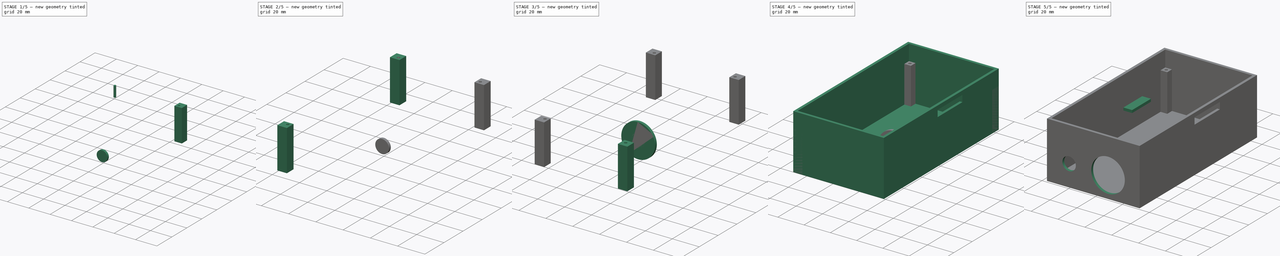
[diagram: build sequence overview — one tinted view per stage of 5, left to right]
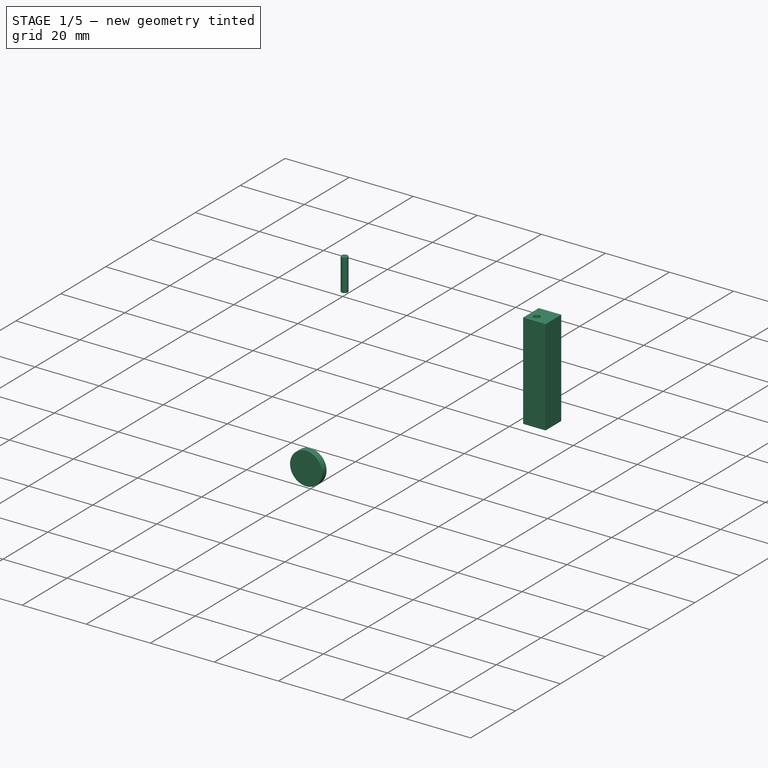
[diagram: stage 1 of 5 — iso view after this stage's code; geometry added in this stage tinted green]
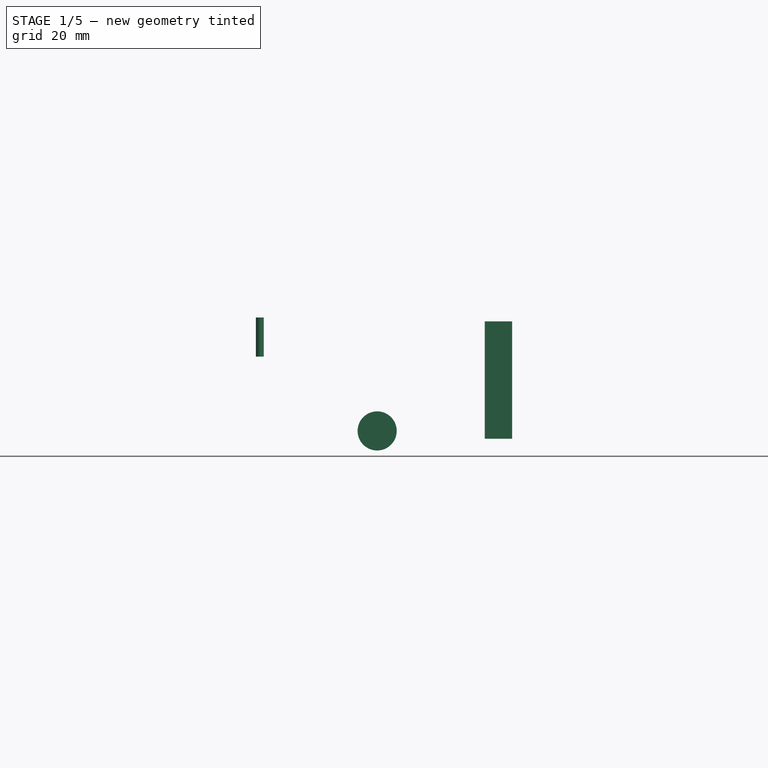
[diagram: stage 1 of 5 — front view after this stage's code; geometry added in this stage tinted green]
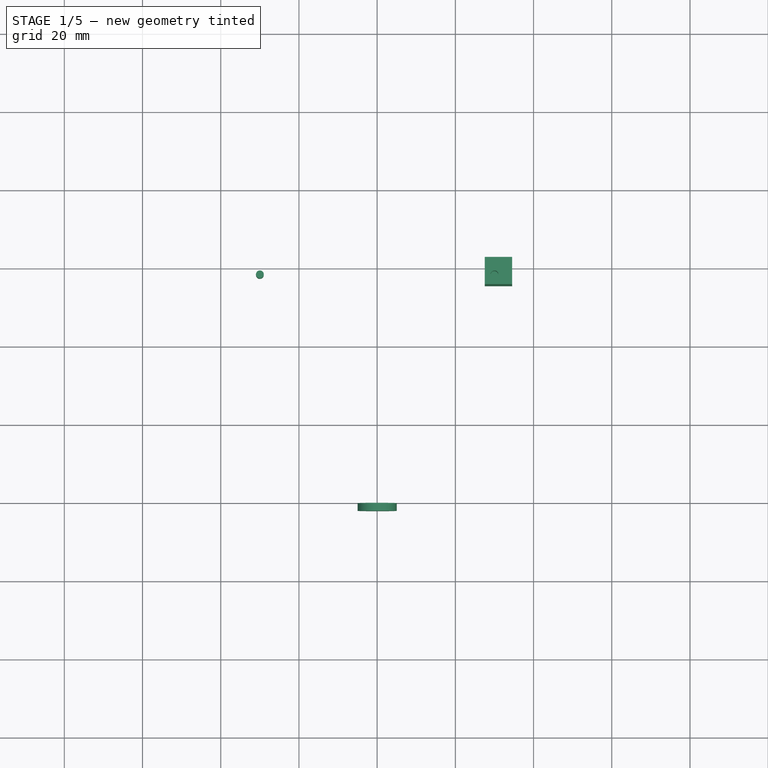
[diagram: stage 1 of 5 — top view after this stage's code; geometry added in this stage tinted green]
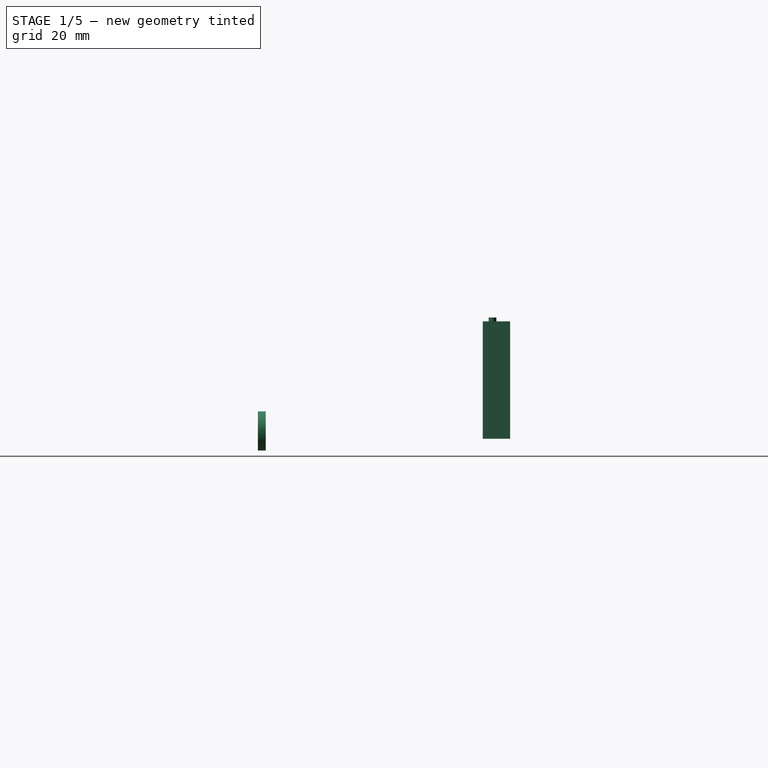
[diagram: stage 1 of 5 — right view after this stage's code; geometry added in this stage tinted green]
FCSTD DOCUMENT  (FreeCAD 0.17R13541 (Git))
Label: ir camera design
License: All rights reserved
LicenseURL: http://en.wikipedia.org/wiki/All_rights_reserved
objects: Sketcher::SketchObject×7, Part::Cut×7, PartDesign::Pad×6, PartDesign::Body×5, Part::Box×4, Part::Cylinder×4, Part::MultiFuse×2, Part::Extrusion×1
note: 42 computed .brp shape members not serialized (recipe doc carries the construction recipe); baked Part::Feature solids carry a one-line shape summary decoded from their .brp

FEATURE [Part::Cylinder] Cylinder002
  Angle = 360
  AttacherType = Attacher::AttachEngine3D
  Height = 10
  Placement = pos=(-30,58,19) rot=(0,0,1;0rad)
  Radius = 1
FEATURE [Part::Box] Box003  label="Cube003"
  AttacherType = Attacher::AttachEngine3D
  Height = 30
  Length = 7
  Placement = pos=(27.5,55.5,-2) rot=(0,0,1;0rad)
  Width = 7
FEATURE [Part::Cylinder] Cylinder003
  Angle = 360
  AttacherType = Attacher::AttachEngine3D
  Height = 10
  Placement = pos=(30,58,18) rot=(0,0,1;0rad)
  Radius = 1
FEATURE [Part::Cut] Cut005  label="screwport 3 "
  Base = -> Box003
  Refine = true
  Tool = -> Cylinder003
FEATURE [Sketcher::SketchObject] Sketch008
  MapMode = 5
  Placement = pos=(0,0,0) rot=(1,0,0;1.5708rad)
  Support = -> [XZ_Plane005]
  sketch-geometry (1):
    g0: Circle CenterX=0 CenterY=0 CenterZ=0 NormalX=0 NormalY=0 NormalZ=1 AngleXU=0 Radius=5
  constraints (2):
    c: Coincident(g0,g-1)
    c: Radius(g0) = 5
FEATURE [PartDesign::Pad] Pad006
  Length = 2
  Length2 = 100
  Placement = pos=(0,0,0) rot=(1,0,0;1.5708rad)
  Profile = -> Sketch008
  Refine = true
  Type = 0
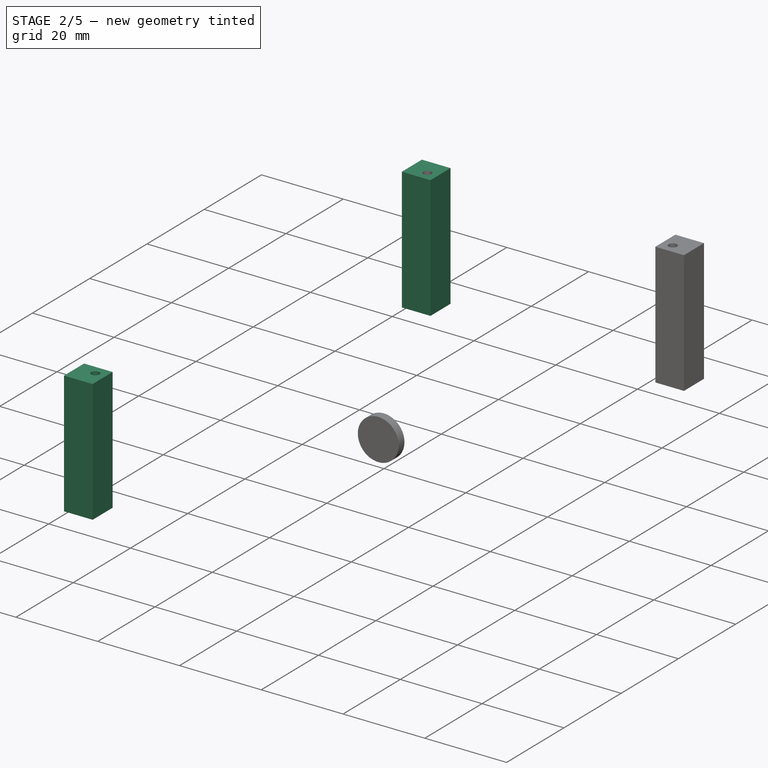
[diagram: stage 2 of 5 — iso view after this stage's code; geometry added in this stage tinted green]
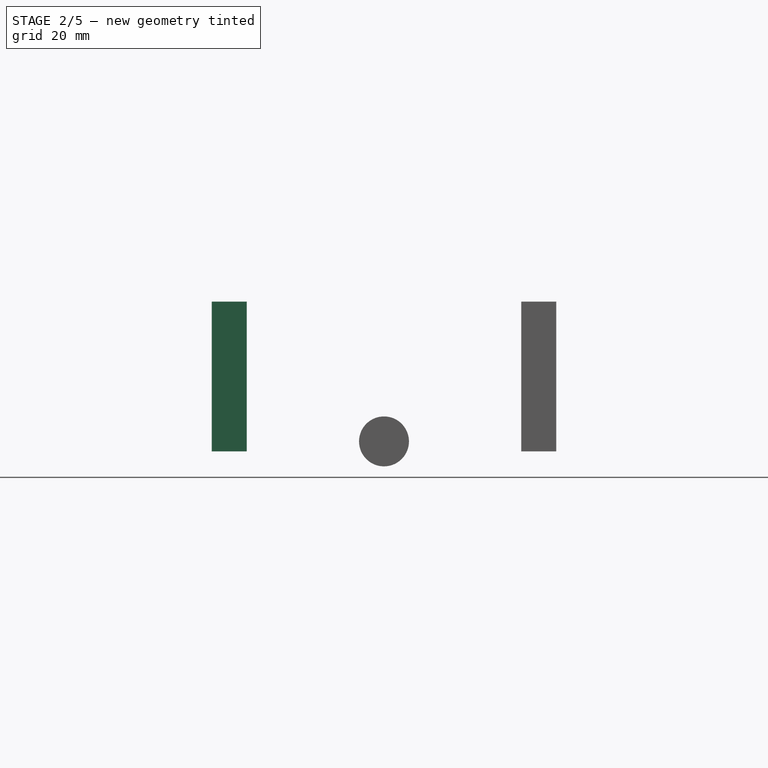
[diagram: stage 2 of 5 — front view after this stage's code; geometry added in this stage tinted green]
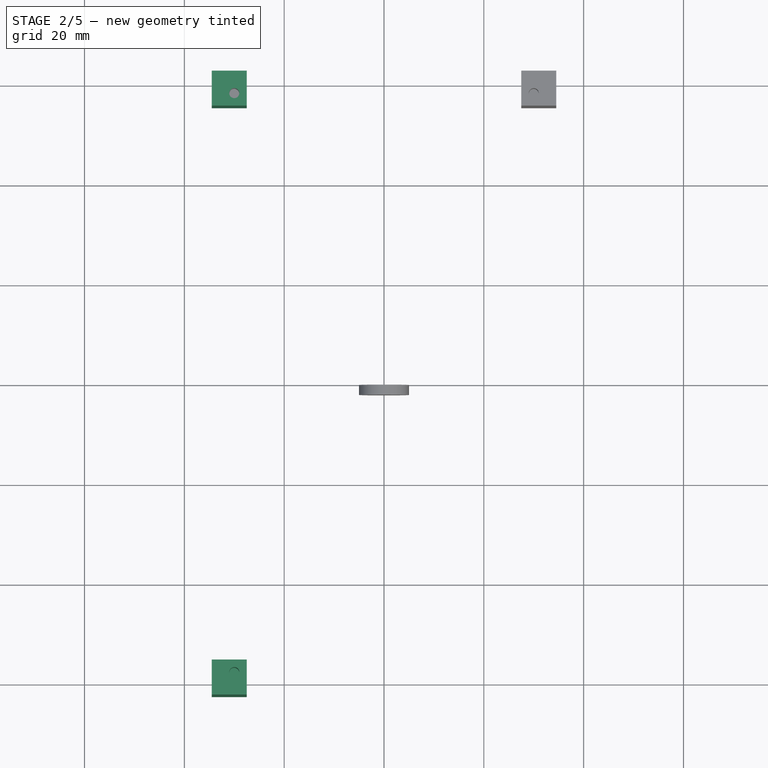
[diagram: stage 2 of 5 — top view after this stage's code; geometry added in this stage tinted green]
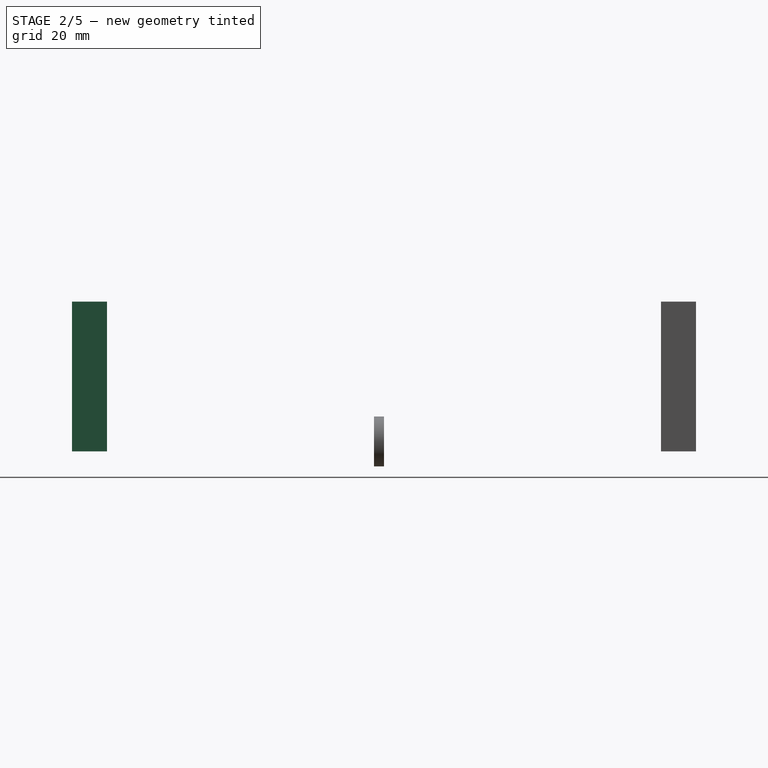
[diagram: stage 2 of 5 — right view after this stage's code; geometry added in this stage tinted green]
FEATURE [Part::Box] Box001  label="Cube001"
  AttacherType = Attacher::AttachEngine3D
  Height = 30
  Length = 7
  Placement = pos=(-34.5,-62.5,0) rot=(0,0,1;0rad)
  Width = 7
FEATURE [Part::Cylinder] Cylinder001
  Angle = 360
  AttacherType = Attacher::AttachEngine3D
  Height = 10
  Placement = pos=(-30,-58,20) rot=(0,0,1;0rad)
  Radius = 1
FEATURE [Part::Cut] Cut003  label="screw port 1"
  Base = -> Box001
  Placement = pos=(0,0,-2) rot=(0,0,1;0rad)
  Refine = true
  Tool = -> Cylinder001
FEATURE [Part::Box] Box002  label="Cube002"
  AttacherType = Attacher::AttachEngine3D
  Height = 30
  Length = 7
  Placement = pos=(-34.5,55.5,-2) rot=(0,0,1;0rad)
  Width = 7
FEATURE [Part::Cut] Cut004  label="screwport 2 "
  Base = -> Box002
  Refine = true
  Tool = -> Cylinder002
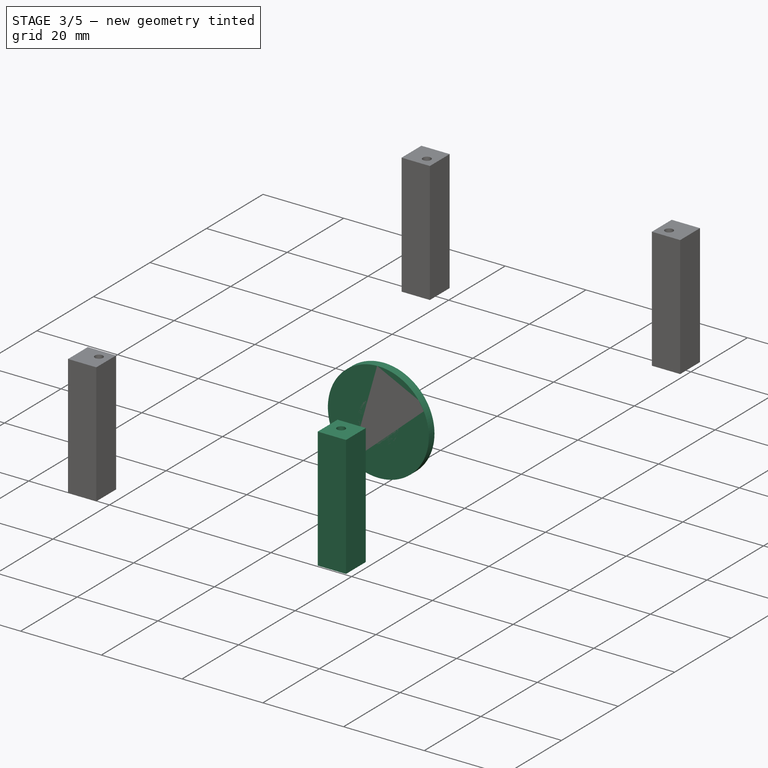
[diagram: stage 3 of 5 — iso view after this stage's code; geometry added in this stage tinted green]
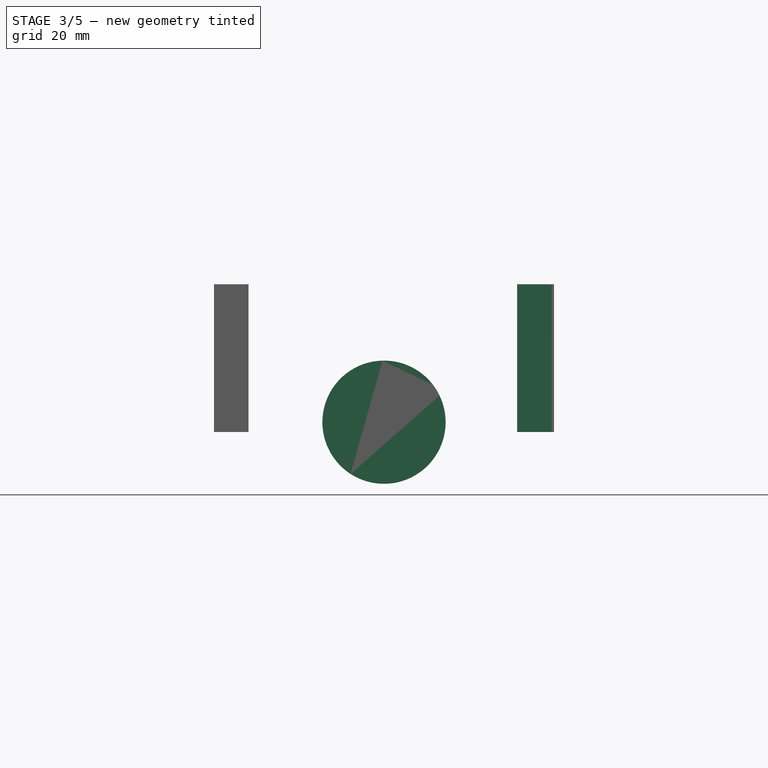
[diagram: stage 3 of 5 — front view after this stage's code; geometry added in this stage tinted green]
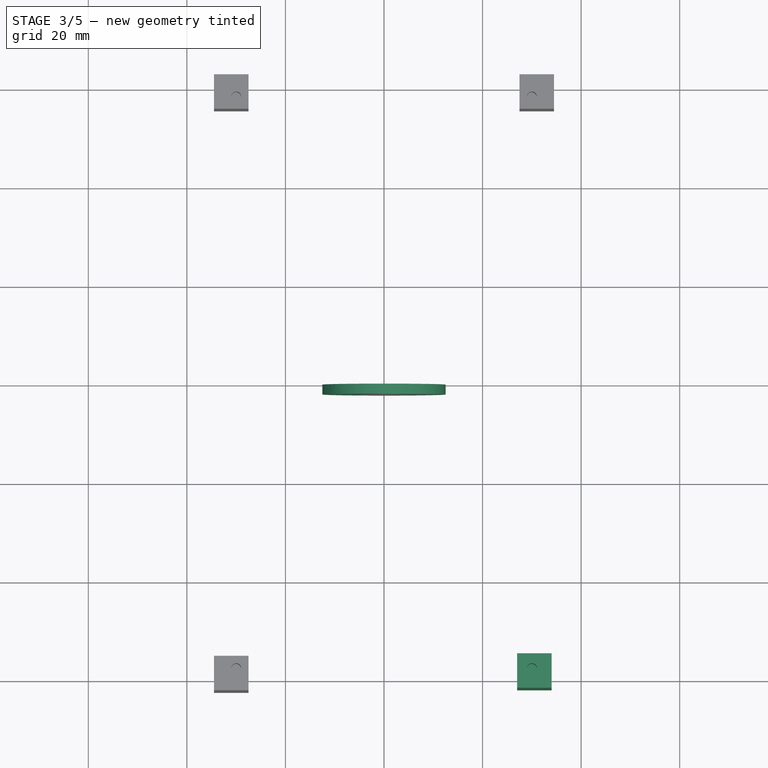
[diagram: stage 3 of 5 — top view after this stage's code; geometry added in this stage tinted green]
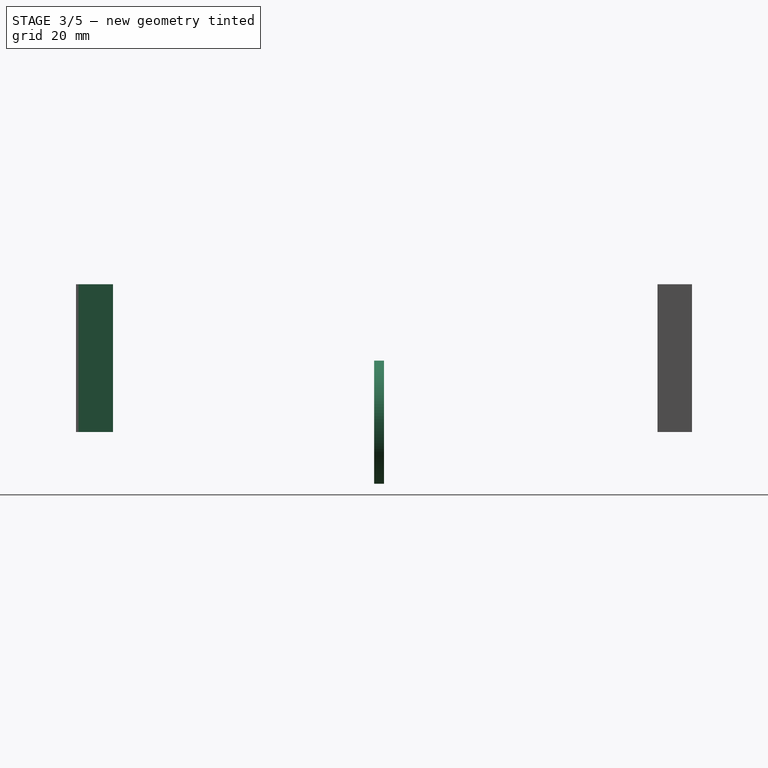
[diagram: stage 3 of 5 — right view after this stage's code; geometry added in this stage tinted green]
FEATURE [Sketcher::SketchObject] Sketch005
  MapMode = 5
  Placement = pos=(0,0,0) rot=(1,0,0;1.5708rad)
  Support = -> [XZ_Plane002]
  sketch-geometry (1):
    g0: Circle CenterX=0 CenterY=0 CenterZ=0 NormalX=0 NormalY=0 NormalZ=1 AngleXU=0 Radius=12.5
  constraints (2):
    c: Coincident(g0,g-1)
    c: Radius(g0) = 12.5
FEATURE [PartDesign::Pad] Pad004
  Length = 2
  Length2 = 100
  Placement = pos=(0,0,0) rot=(1,0,0;1.5708rad)
  Profile = -> Sketch005
  Refine = true
  Type = 0
FEATURE [Part::Box] Box  label="Cube"
  AttacherType = Attacher::AttachEngine3D
  Height = 30
  Length = 7
  Placement = pos=(27,-62,-2) rot=(0,0,1;0rad)
  Width = 7
FEATURE [Part::Cylinder] Cylinder
  Angle = 360
  AttacherType = Attacher::AttachEngine3D
  Height = 10
  Placement = pos=(30,-58,18) rot=(0,0,1;0rad)
  Radius = 1
FEATURE [Part::Cut] Cut002  label="screwport 4"
  Base = -> Box
  Refine = true
  Tool = -> Cylinder
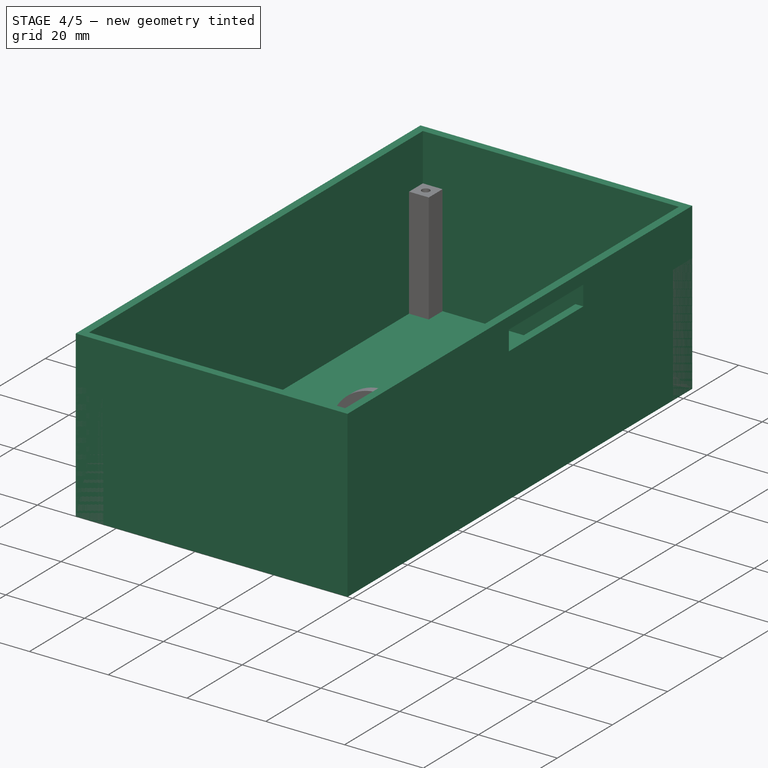
[diagram: stage 4 of 5 — iso view after this stage's code; geometry added in this stage tinted green]
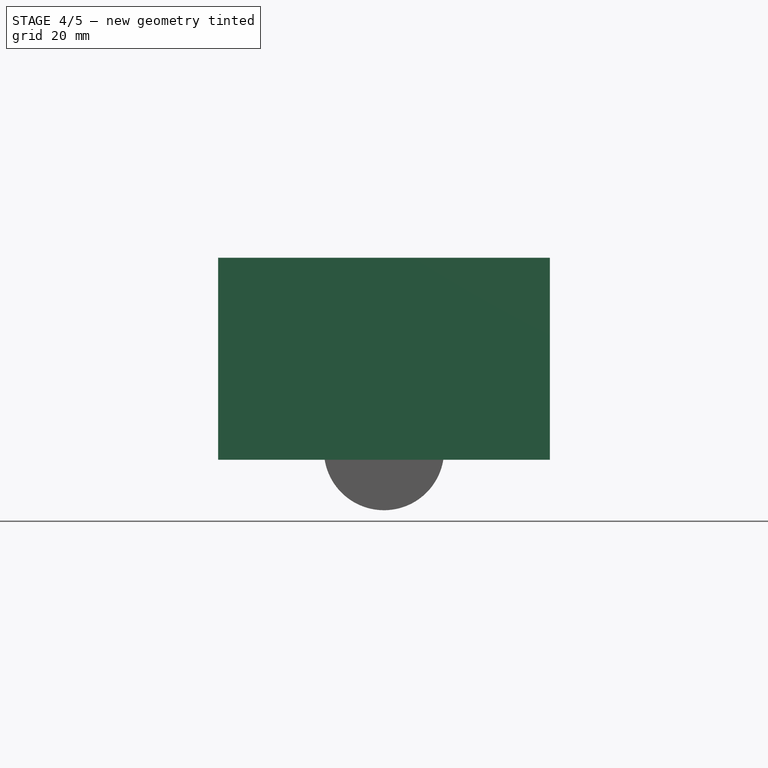
[diagram: stage 4 of 5 — front view after this stage's code; geometry added in this stage tinted green]
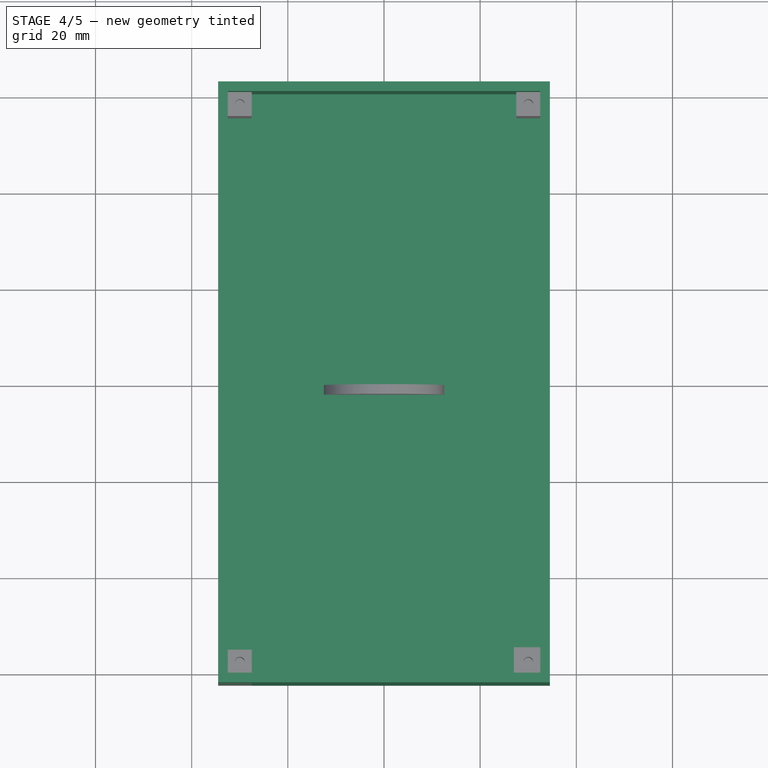
[diagram: stage 4 of 5 — top view after this stage's code; geometry added in this stage tinted green]
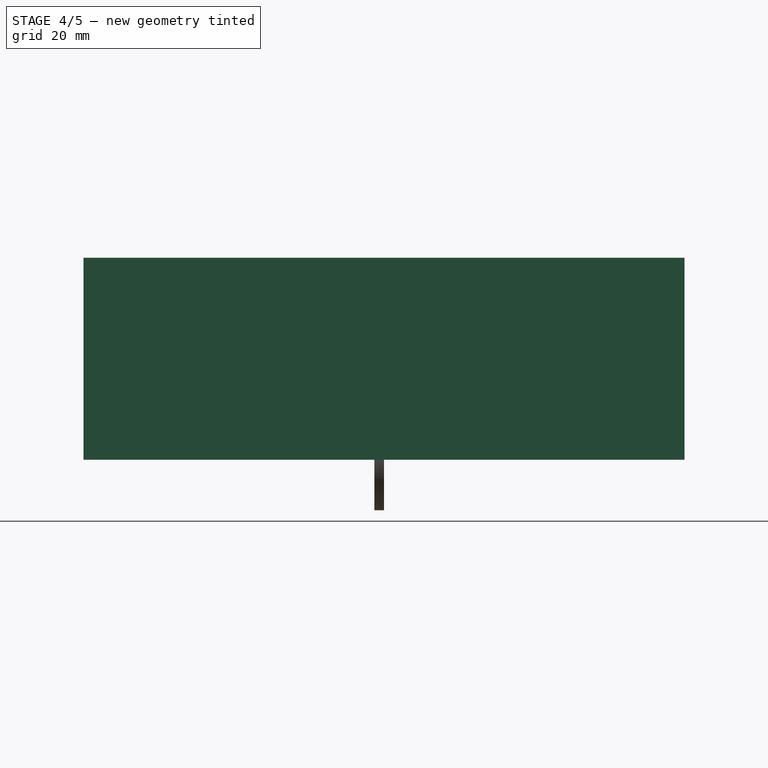
[diagram: stage 4 of 5 — right view after this stage's code; geometry added in this stage tinted green]
FEATURE [Sketcher::SketchObject] Sketch
  MapMode = 5
  Support = -> [XY_Plane]
  sketch-geometry (4):
    g0: LineSegment StartX=-34.5 StartY=62.5 StartZ=0 EndX=34.5 EndY=62.5 EndZ=0
    g1: LineSegment StartX=34.5 StartY=62.5 StartZ=0 EndX=34.5 EndY=-62.5 EndZ=0
    g2: LineSegment StartX=34.5 StartY=-62.5 StartZ=0 EndX=-34.5 EndY=-62.5 EndZ=0
    g3: LineSegment StartX=-34.5 StartY=-62.5 StartZ=0 EndX=-34.5 EndY=62.5 EndZ=0
  constraints (10):
    c: Coincident(g0,g1)
    c: Coincident(g1,g2)
    c: Coincident(g2,g3)
    c: Coincident(g3,g0)
    c: Horizontal(g2)
    c: Vertical(g1)
    c: Symmetric(g0,g0,g-2)
    c: Symmetric(g0,g2,g-1)
    c: DistanceX(g0,g0) = 69
    c: DistanceY(g1,g1) = 125
FEATURE [PartDesign::Pad] Pad
  Length = 2
  Length2 = 100
  Profile = -> Sketch
  Refine = true
  Reversed = true
  Type = 0
FEATURE [Sketcher::SketchObject] Sketch001
  ExternalGeometry = -> [Pad]
  MapMode = 5
  Support = -> [XY_Plane]
  sketch-geometry (8):
    g0: LineSegment StartX=-34.5 StartY=60.5 StartZ=0 EndX=34.5 EndY=60.5 EndZ=0
    g1: LineSegment StartX=34.5 StartY=60.5 StartZ=0 EndX=34.5 EndY=62.5 EndZ=0
    g2: LineSegment StartX=34.5 StartY=62.5 StartZ=0 EndX=-34.5 EndY=62.5 EndZ=0
    g3: LineSegment StartX=-34.5 StartY=62.5 StartZ=0 EndX=-34.5 EndY=60.5 EndZ=0
    g4: LineSegment StartX=-34.5 StartY=-62.5 StartZ=0 EndX=34.5 EndY=-62.5 EndZ=0
    g5: LineSegment StartX=34.5 StartY=-62.5 StartZ=0 EndX=34.5 EndY=-60.5 EndZ=0
    g6: LineSegment StartX=34.5 StartY=-60.5 StartZ=0 EndX=-34.5 EndY=-60.5 EndZ=0
    g7: LineSegment StartX=-34.5 StartY=-60.5 StartZ=0 EndX=-34.5 EndY=-62.5 EndZ=0
  constraints (20):
    c: Coincident(g0,g1)
    c: Coincident(g1,g2)
    c: Coincident(g2,g3)
    c: Coincident(g3,g0)
    c: Horizontal(g0)
    c: Vertical(g1)
    c: Vertical(g3)
    c: Coincident(g4,g5)
    c: Coincident(g5,g6)
    c: Coincident(g6,g7)
    c: Coincident(g7,g4)
    c: Horizontal(g6)
    c: Vertical(g5)
    c: Vertical(g7)
    c: Coincident(g1,g-3)
    c: Coincident(g2,g-4)
    c: Coincident(g4,g-5)
    c: Coincident(g4,g-6)
    c: DistanceY(g3,g3) = 2
    c: DistanceY(g7,g7) = 2
FEATURE [PartDesign::Pad] Pad001
  BaseFeature = -> Pad
  Length = 40
  Length2 = 2
  Profile = -> Sketch001
  Refine = true
  Type = 4
FEATURE [Sketcher::SketchObject] Sketch002
  MapMode = 5
  Support = -> [XY_Plane]
  sketch-geometry (8):
    g0: LineSegment StartX=34.5 StartY=62.5 StartZ=0 EndX=32.5 EndY=62.5 EndZ=0
    g1: LineSegment StartX=32.5 StartY=62.5 StartZ=0 EndX=32.5 EndY=-62.5 EndZ=0
    g2: LineSegment StartX=32.5 StartY=-62.5 StartZ=0 EndX=34.5 EndY=-62.5 EndZ=0
    g3: LineSegment StartX=34.5 StartY=-62.5 StartZ=0 EndX=34.5 EndY=62.5 EndZ=0
    g4: LineSegment StartX=-32.5 StartY=62.5 StartZ=0 EndX=-34.5 EndY=62.5 EndZ=0
    g5: LineSegment StartX=-34.5 StartY=62.5 StartZ=0 EndX=-34.5 EndY=-62.5 EndZ=0
    g6: LineSegment StartX=-34.5 StartY=-62.5 StartZ=0 EndX=-32.5 EndY=-62.5 EndZ=0
    g7: LineSegment StartX=-32.5 StartY=-62.5 StartZ=0 EndX=-32.5 EndY=62.5 EndZ=0
  constraints (21):
    c: Coincident(g0,g1)
    c: Coincident(g1,g2)
    c: Coincident(g2,g3)
    c: Coincident(g3,g0)
    c: Horizontal(g0)
    c: Horizontal(g2)
    c: Vertical(g1)
    c: Vertical(g3)
    c: Coincident(g4,g5)
    c: Coincident(g5,g6)
    c: Coincident(g6,g7)
    c: Coincident(g7,g4)
    c: Horizontal(g4)
    c: Horizontal(g6)
    c: Distance(g0,g4) = 69
    c: DistanceY(g7,g7) = 125
    c: Symmetric(g4,g5,g-1)
    c: DistanceX(g4,g4) = 2
    c: Symmetric(g4,g0,g-2)
    c: Equal(g0,g4)
    c: Symmetric(g6,g1,g-2)
FEATURE [PartDesign::Pad] Pad002
  BaseFeature = -> Pad001
  Length = 40
  Length2 = 2
  Profile = -> Sketch002
  Refine = true
  Type = 4
FEATURE [PartDesign::Body] Body  label="body"
  Group = -> [Sketch,Pad,Sketch001,Pad001,Sketch002,Pad002]
  Origin = -> Origin
  Tip = -> Pad002
FEATURE [Sketcher::SketchObject] Sketch004
  MapMode = 5
  Placement = pos=(0,0,0) rot=(0.57735,0.57735,0.57735;2.0944rad)
  Support = -> [YZ_Plane001]
  sketch-geometry (4):
    g0: LineSegment StartX=-6 StartY=36 StartZ=0 EndX=21 EndY=36 EndZ=0
    g1: LineSegment StartX=21 StartY=36 StartZ=0 EndX=21 EndY=31 EndZ=0
    g2: LineSegment StartX=21 StartY=31 StartZ=0 EndX=-6 EndY=31 EndZ=0
    g3: LineSegment StartX=-6 StartY=31 StartZ=0 EndX=-6 EndY=36 EndZ=0
  constraints (12):
    c: Coincident(g0,g1)
    c: Coincident(g1,g2)
    c: Coincident(g2,g3)
    c: Coincident(g3,g0)
    c: Horizontal(g0)
    c: Horizontal(g2)
    c: Vertical(g1)
    c: Vertical(g3)
    c: DistanceY(g-1,g2) = 31
    c: DistanceX(g0,g0) = 27
    c: DistanceY(g1,g1) = 5
    c: DistanceX(g-2,g0) = 21
FEATURE [PartDesign::Pad] Pad003
  Length = 2
  Length2 = 100
  Placement = pos=(0,0,0) rot=(0.57735,0.57735,0.57735;2.0944rad)
  Profile = -> Sketch004
  Refine = true
  Type = 0
FEATURE [PartDesign::Body] Body001  label="sd slot"
  Group = -> [Sketch004,Pad003]
  Origin = -> Origin001
  Placement = pos=(32.5,2,1) rot=(0,0,1;0rad)
  Tip = -> Pad003
FEATURE [Part::Cut] Cut
  Base = -> Body
  Refine = true
  Tool = -> Body001
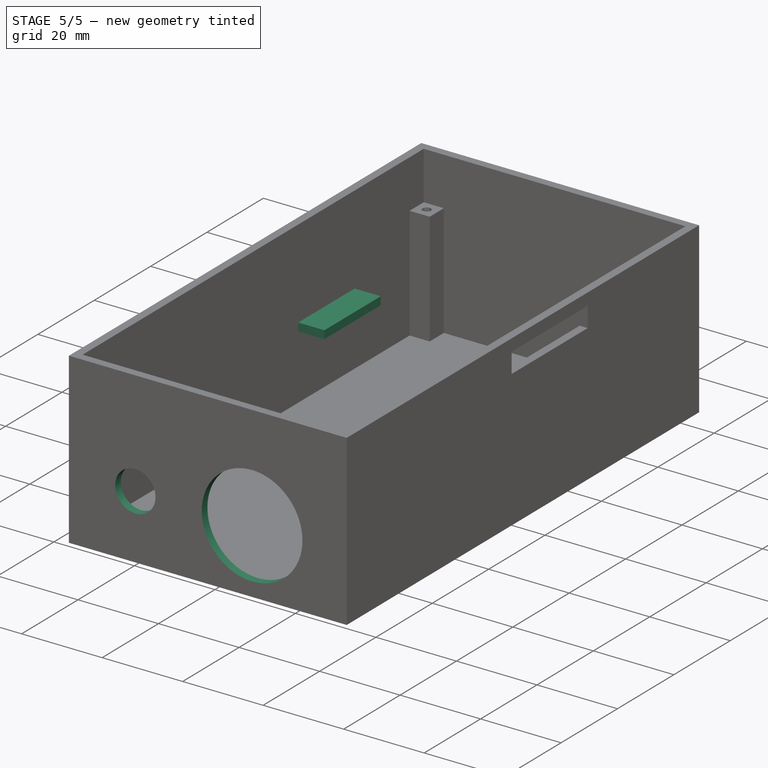
[diagram: stage 5 of 5 — iso view after this stage's code; geometry added in this stage tinted green]
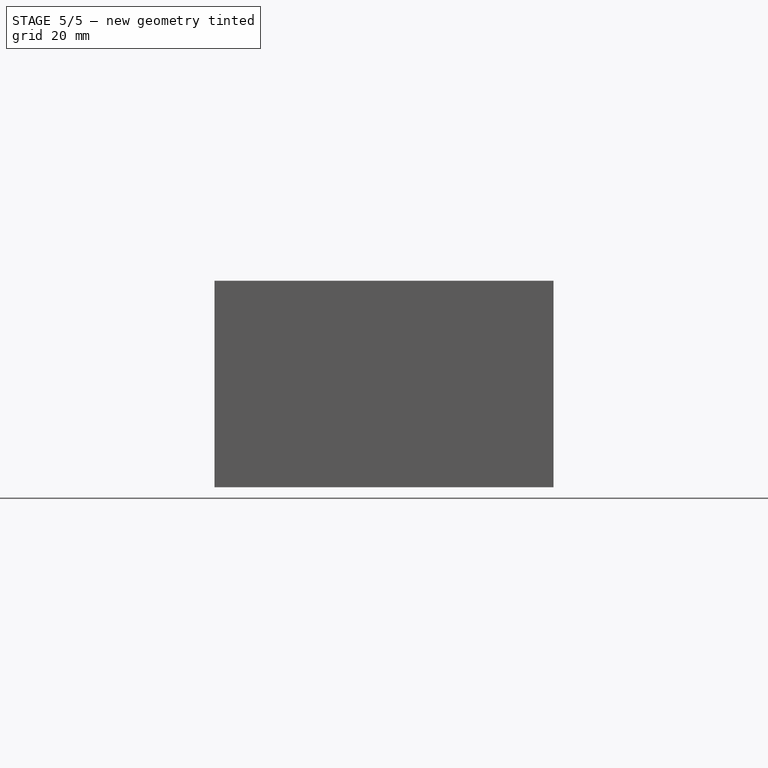
[diagram: stage 5 of 5 — front view after this stage's code; geometry added in this stage tinted green]
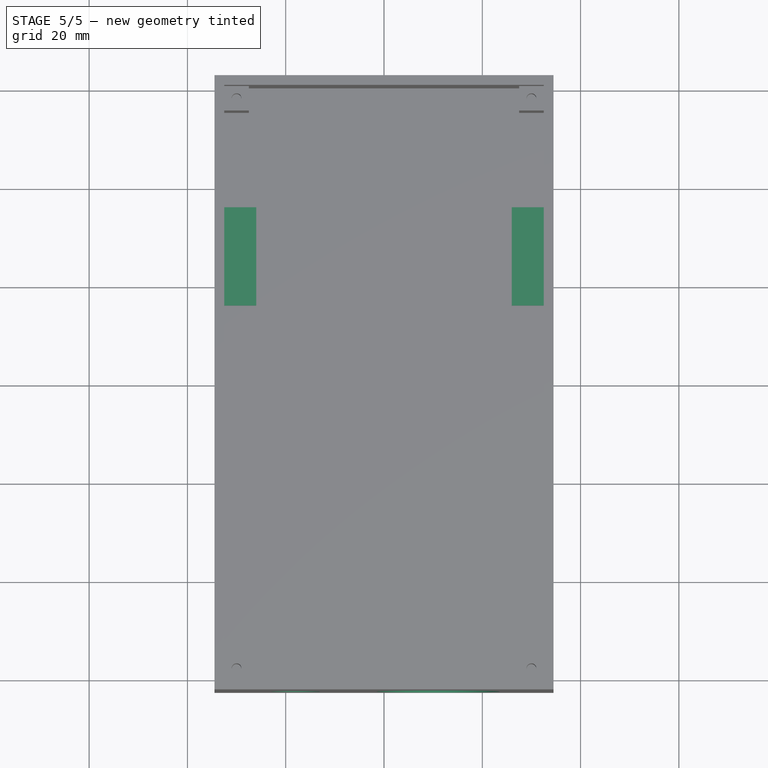
[diagram: stage 5 of 5 — top view after this stage's code; geometry added in this stage tinted green]
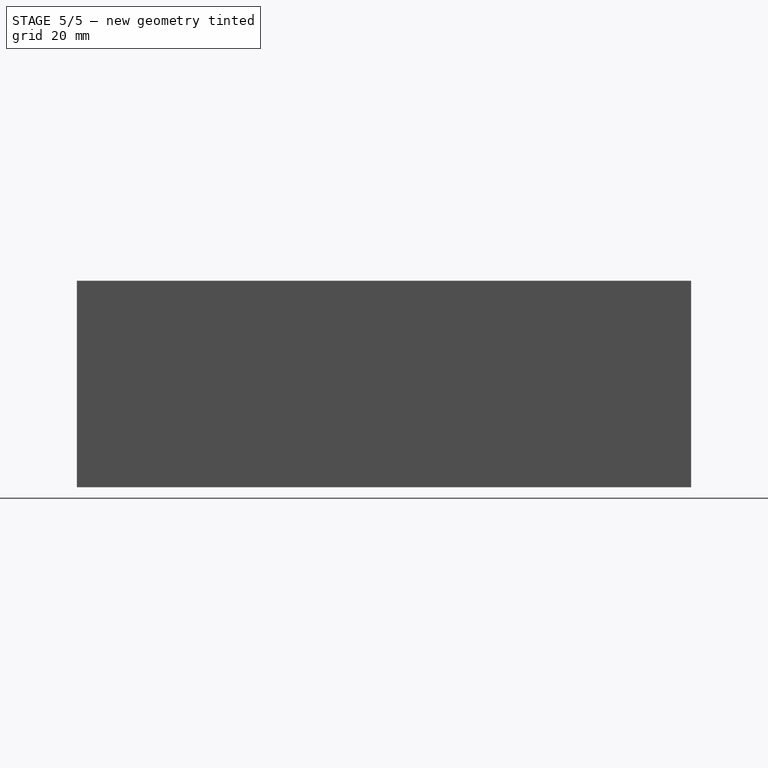
[diagram: stage 5 of 5 — right view after this stage's code; geometry added in this stage tinted green]
FEATURE [PartDesign::Body] Body002
  Group = -> [Sketch005,Pad004]
  Origin = -> Origin002
  Placement = pos=(11,-60.5,14) rot=(0,0,1;0rad)
  Tip = -> Pad004
FEATURE [Part::Cut] Cut001
  Base = -> Cut
  Refine = true
  Tool = -> Body002
FEATURE [Sketcher::SketchObject] Sketch006
  MapMode = 5
  Support = -> [XY_Plane003]
  sketch-geometry (8):
    g0: LineSegment StartX=38 StartY=10 StartZ=0 EndX=30 EndY=10 EndZ=0
    g1: LineSegment StartX=30 StartY=10 StartZ=0 EndX=30 EndY=-10 EndZ=0
    g2: LineSegment StartX=30 StartY=-10 StartZ=0 EndX=38 EndY=-10 EndZ=0
    g3: LineSegment StartX=38 StartY=-10 StartZ=0 EndX=38 EndY=10 EndZ=0
    g4: LineSegment StartX=-22 StartY=10 StartZ=0 EndX=-30 EndY=10 EndZ=0
    g5: LineSegment StartX=-30 StartY=10 StartZ=0 EndX=-30 EndY=-10 EndZ=0
    g6: LineSegment StartX=-30 StartY=-10 StartZ=0 EndX=-22 EndY=-10 EndZ=0
    g7: LineSegment StartX=-22 StartY=-10 StartZ=0 EndX=-22 EndY=10 EndZ=0
  constraints (22):
    c: Coincident(g0,g1)
    c: Coincident(g1,g2)
    c: Coincident(g2,g3)
    c: Coincident(g3,g0)
    c: Horizontal(g0)
    c: Horizontal(g2)
    c: Vertical(g1)
    c: Vertical(g3)
    c: Coincident(g4,g5)
    c: Coincident(g5,g6)
    c: Coincident(g6,g7)
    c: Coincident(g7,g4)
    c: Horizontal(g4)
    c: Horizontal(g6)
    c: Vertical(g7)
    c: Symmetric(g0,g4,g-2)
    c: Equal(g4,g0)
    c: Equal(g3,g5)
    c: Distance(g2) = 8
    c: DistanceY(g5,g5) = 20
    c: Symmetric(g4,g5,g-1)
    c: Distance(g0,g4) = 52
FEATURE [PartDesign::Body] Body003
  Group = -> [Sketch006]
  Origin = -> Origin003
FEATURE [Part::Extrusion] Extrude
  Base = -> Sketch006
  Dir = (0,0,1)
  DirMode = 2
  FaceMakerClass = Part::FaceMakerBullseye
  LengthFwd = 2
  LengthRev = 0
  Placement = pos=(-4,26,16) rot=(0,0,1;0rad)
  Solid = true
  Symmetric = false
FEATURE [Part::MultiFuse] Fusion
  Refine = true
  Shapes = -> [Cut005,Cut004,Cut003,Cut002,Cut001]
FEATURE [Part::MultiFuse] Fusion001  label="final "
  Refine = true
  Shapes = -> [Extrude,Fusion]
FEATURE [PartDesign::Body] Body005
  Group = -> [Sketch008,Pad006]
  Origin = -> Origin005
  Placement = pos=(-18,-60.5,14) rot=(0,0,1;0rad)
  Tip = -> Pad006
FEATURE [Part::Cut] Cut006
  Base = -> Fusion001
  Tool = -> Body005
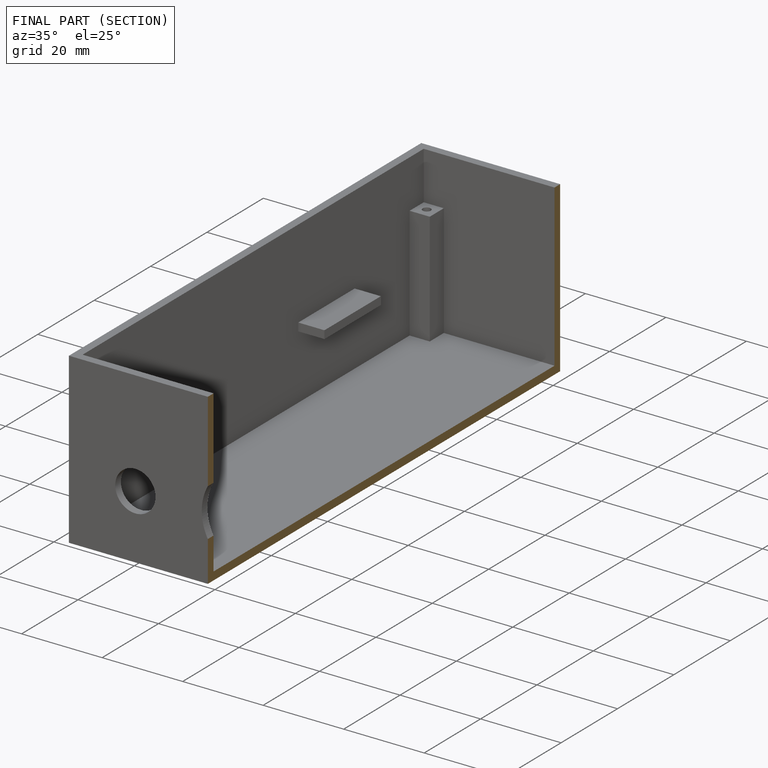
[diagram: finished part — half-section view (interior)]
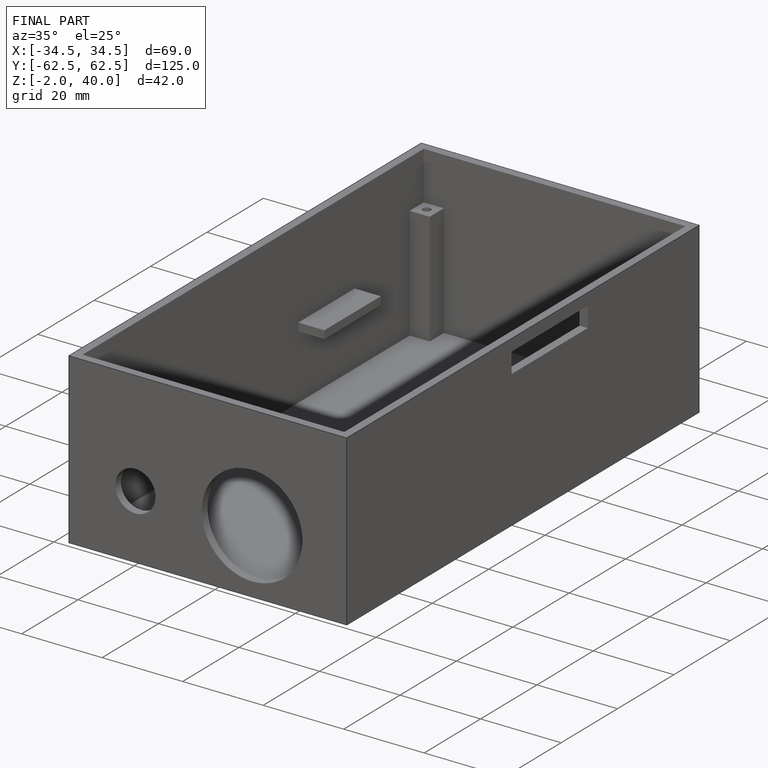
[diagram: finished part — iso view with bounding-box wireframe]
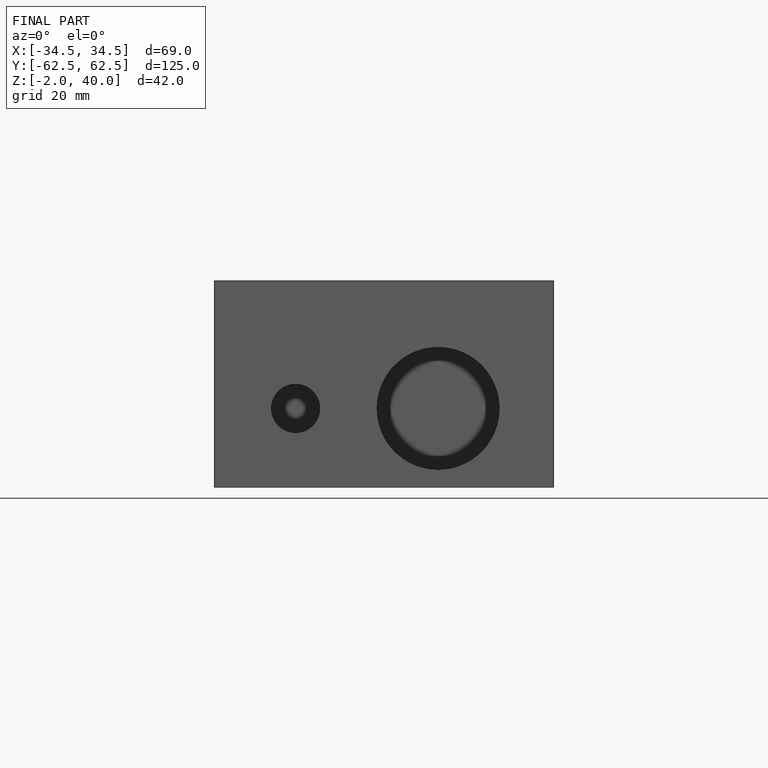
[diagram: finished part — front view with bounding-box wireframe]
